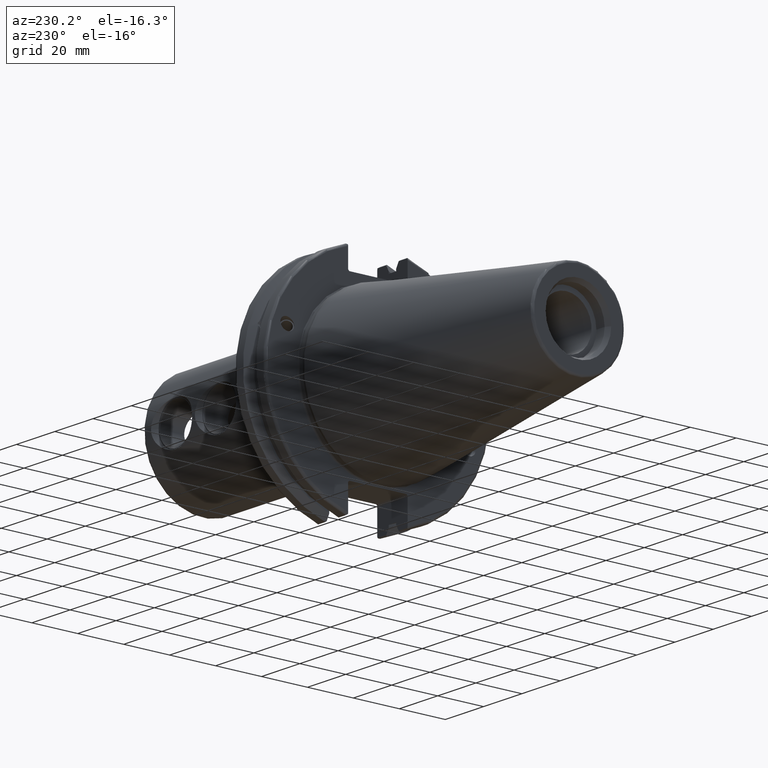
[diagram: clean part render]
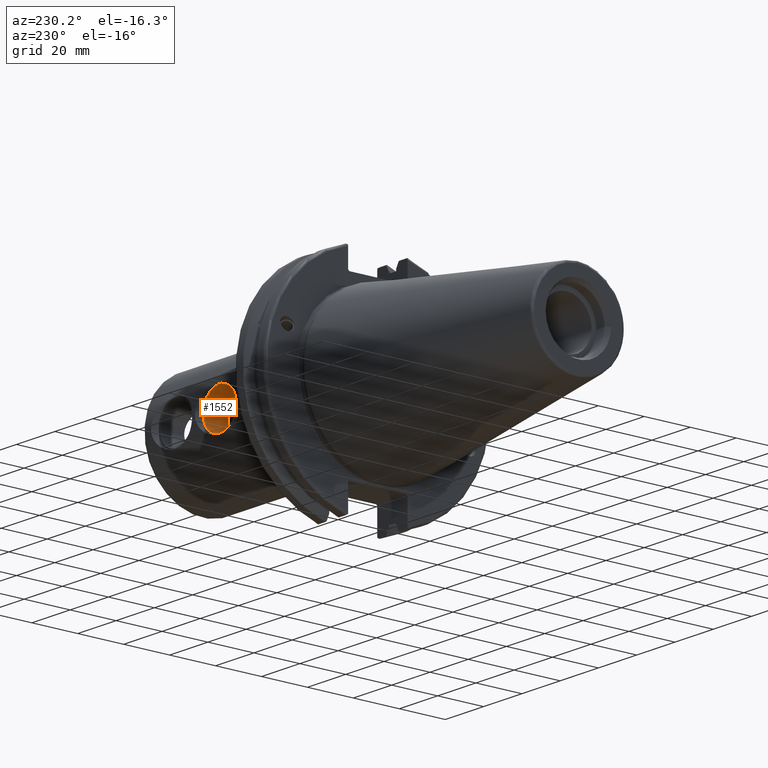
[diagram: same view with one face highlighted and labeled with its STEP entity id]
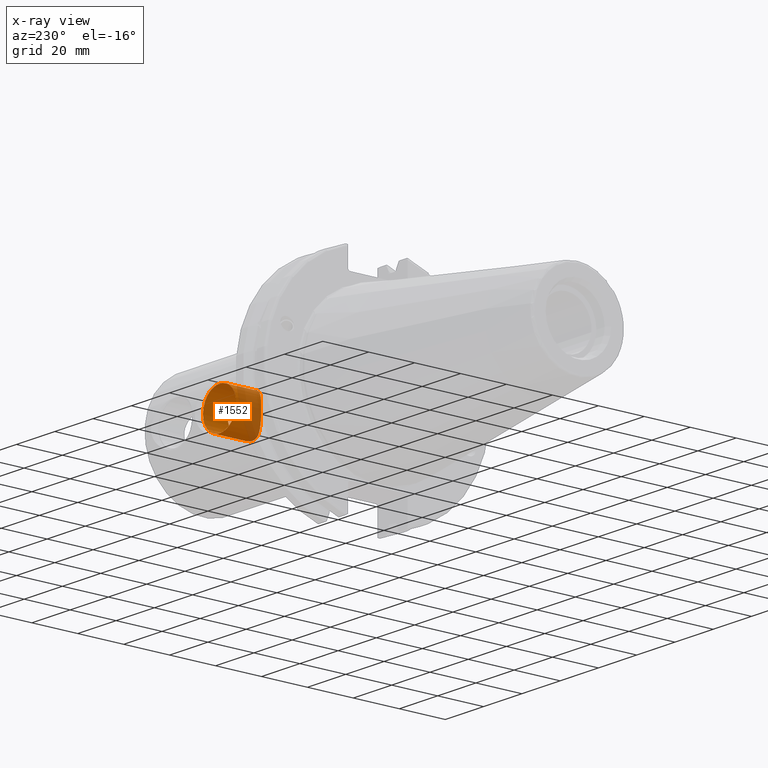
[diagram: x-ray of the same camera — body ghosted, the highlighted face saturated]
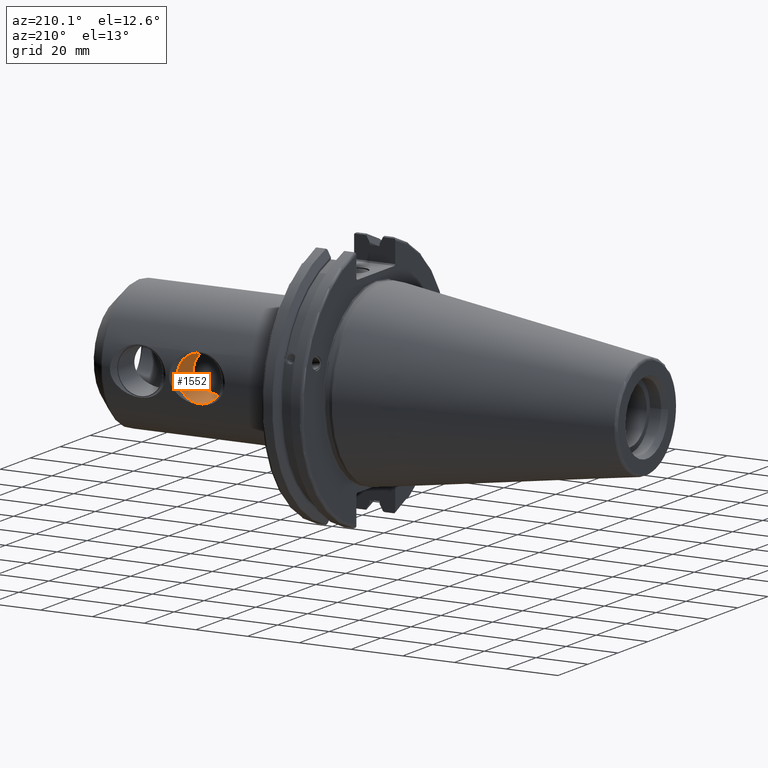
[diagram: same view with one face highlighted and labeled with its STEP entity id]
A machine part, auxiliary view. The second image highlights one B-rep face of the part: STEP entity #1552.
The next image is the same camera in x-ray: the body ghosted, the highlighted face saturated — about 34% of this face is hidden behind the body in this view.
A second angle (auxiliary view) of the same face is appended — the face is thin or edge-on in the first view.
In plain terms, the highlighted cylindrical surface (bore or boss wall) has radius 8.6614 mm, axis along (0, 1, 0).
Its self-contained STEP definition (entity closure, byte-faithful):
#122=FACE_OUTER_BOUND('',#213,.T.);
#213=EDGE_LOOP('',(#1046,#1047,#1048,#1049,#1050));
#330=B_SPLINE_CURVE_WITH_KNOTS('',3,(#2291,#2292,#2293,#2294,#2295,#2296,
#2297,#2298,#2299,#2300,#2301,#2302,#2303,#2304,#2305,#2306,#2307,#2308,
#2309,#2310,#2311,#2312,#2313,#2314,#2315,#2316),.UNSPECIFIED.,.F.,.F.,
(4,2,2,2,2,2,2,2,2,2,2,2,4),(0.,0.342831187342052,0.685662374684105,1.02424067190905,
1.36281896913399,1.70139726635893,2.03997556358388,2.38280675092593,2.72563793826798,
3.06846912561003,3.41130031295209,3.74987861017703,4.08845690740197),
 .UNSPECIFIED.);
#331=B_SPLINE_CURVE_WITH_KNOTS('',3,(#2317,#2318,#2319,#2320,#2321,#2322,
#2323,#2324,#2325,#2326),.UNSPECIFIED.,.F.,.F.,(4,2,2,2,4),(4.08845690740197,
4.42703520462692,4.76561350185186,5.10844468919391,5.45127587653596),
 .UNSPECIFIED.);
#376=LINE('',#2289,#470);
#470=VECTOR('',#1846,8.6614);
#564=CIRCLE('',#1667,8.6614);
#645=VERTEX_POINT('',#2286);
#646=VERTEX_POINT('',#2288);
#647=VERTEX_POINT('',#2290);
#807=EDGE_CURVE('',#645,#645,#564,.T.);
#808=EDGE_CURVE('',#645,#646,#376,.T.);
#809=EDGE_CURVE('',#647,#646,#330,.T.);
#810=EDGE_CURVE('',#646,#647,#331,.T.);
#1046=ORIENTED_EDGE('',*,*,#807,.T.);
#1047=ORIENTED_EDGE('',*,*,#808,.T.);
#1048=ORIENTED_EDGE('',*,*,#809,.F.);
#1049=ORIENTED_EDGE('',*,*,#810,.F.);
#1050=ORIENTED_EDGE('',*,*,#808,.F.);
#1524=CYLINDRICAL_SURFACE('',#1666,8.6614);
#1552=ADVANCED_FACE('',(#122),#1524,.F.);
#1666=AXIS2_PLACEMENT_3D('',#2285,#1842,#1843);
#1667=AXIS2_PLACEMENT_3D('',#2287,#1844,#1845);
#1842=DIRECTION('center_axis',(0.,1.,0.));
#1843=DIRECTION('ref_axis',(1.,0.,0.));
#1844=DIRECTION('center_axis',(0.,1.,0.));
#1845=DIRECTION('ref_axis',(1.,0.,0.));
#1846=DIRECTION('',(0.,-1.,0.));
#2285=CARTESIAN_POINT('Origin',(57.6,-221.23559582671,0.));
#2286=CARTESIAN_POINT('',(48.9386,23.6,1.06071557861349E-15));
#2287=CARTESIAN_POINT('Origin',(57.6,23.6,0.));
#2288=CARTESIAN_POINT('',(48.9386,12.7,1.77935869201005E-15));
#2289=CARTESIAN_POINT('',(48.9386,-221.23559582671,1.06071557861349E-15));
#2290=CARTESIAN_POINT('',(57.6,9.28817258883575,8.6614));
#2291=CARTESIAN_POINT('Ctrl Pts',(57.6,9.28817258883575,8.6614));
#2292=CARTESIAN_POINT('Ctrl Pts',(58.7427706244735,9.28817258883575,8.6614));
#2293=CARTESIAN_POINT('Ctrl Pts',(59.9131925798569,9.52028980979603,8.42510703939285));
#2294=CARTESIAN_POINT('Ctrl Pts',(62.0248186480471,10.2403122930747,7.53354592798));
#2295=CARTESIAN_POINT('Ctrl Pts',(62.9715110112521,10.7111190531903,6.87755833788623));
#2296=CARTESIAN_POINT('Ctrl Pts',(64.4682169272623,11.5350374541816,5.38085242187607));
#2297=CARTESIAN_POINT('Ctrl Pts',(65.1302869359934,11.9523850753063,4.43227008771076));
#2298=CARTESIAN_POINT('Ctrl Pts',(66.0277674149023,12.5372065673924,2.30715875855382));
#2299=CARTESIAN_POINT('Ctrl Pts',(66.2614,12.7,1.12859432408314));
#2300=CARTESIAN_POINT('Ctrl Pts',(66.2614,12.7,-1.12859432408315));
#2301=CARTESIAN_POINT('Ctrl Pts',(66.0277674149023,12.5372065673924,-2.30715875855382));
#2302=CARTESIAN_POINT('Ctrl Pts',(65.1302869359934,11.9523850753063,-4.43227008771076));
#2303=CARTESIAN_POINT('Ctrl Pts',(64.4682169272623,11.5350374541816,-5.38085242187607));
#2304=CARTESIAN_POINT('Ctrl Pts',(62.9715110112521,10.7111190531903,-6.87755833788623));
#2305=CARTESIAN_POINT('Ctrl Pts',(62.0248186480471,10.2403122930747,-7.53354592798));
#2306=CARTESIAN_POINT('Ctrl Pts',(59.9131925798569,9.52028980979604,-8.42510703939285));
#2307=CARTESIAN_POINT('Ctrl Pts',(58.7427706244735,9.28817258883575,-8.6614));
#2308=CARTESIAN_POINT('Ctrl Pts',(56.4572293755265,9.28817258883575,-8.6614));
#2309=CARTESIAN_POINT('Ctrl Pts',(55.2868074201431,9.52028980979603,-8.42510703939285));
#2310=CARTESIAN_POINT('Ctrl Pts',(53.1751813519529,10.2403122930747,-7.53354592798));
#2311=CARTESIAN_POINT('Ctrl Pts',(52.2284889887479,10.7111190531903,-6.87755833788623));
#2312=CARTESIAN_POINT('Ctrl Pts',(50.7317830727377,11.5350374541816,-5.38085242187607));
#2313=CARTESIAN_POINT('Ctrl Pts',(50.0697130640066,11.9523850753063,-4.43227008771076));
#2314=CARTESIAN_POINT('Ctrl Pts',(49.1722325850977,12.5372065673924,-2.30715875855382));
#2315=CARTESIAN_POINT('Ctrl Pts',(48.9386,12.7,-1.12859432408314));
#2316=CARTESIAN_POINT('Ctrl Pts',(48.9386,12.7,2.77555756156289E-16));
#2317=CARTESIAN_POINT('Ctrl Pts',(48.9386,12.7,2.22044604925031E-15));
#2318=CARTESIAN_POINT('Ctrl Pts',(48.9386,12.7,1.12859432408315));
#2319=CARTESIAN_POINT('Ctrl Pts',(49.1722325850977,12.5372065673924,2.30715875855383));
#2320=CARTESIAN_POINT('Ctrl Pts',(50.0697130640066,11.9523850753063,4.43227008771077));
#2321=CARTESIAN_POINT('Ctrl Pts',(50.7317830727377,11.5350374541816,5.38085242187607));
#2322=CARTESIAN_POINT('Ctrl Pts',(52.2284889887479,10.7111190531903,6.87755833788624));
#2323=CARTESIAN_POINT('Ctrl Pts',(53.1751813519529,10.2403122930747,7.53354592798001));
#2324=CARTESIAN_POINT('Ctrl Pts',(55.2868074201431,9.52028980979603,8.42510703939285));
#2325=CARTESIAN_POINT('Ctrl Pts',(56.4572293755265,9.28817258883575,8.6614));
#2326=CARTESIAN_POINT('Ctrl Pts',(57.6,9.28817258883575,8.6614));